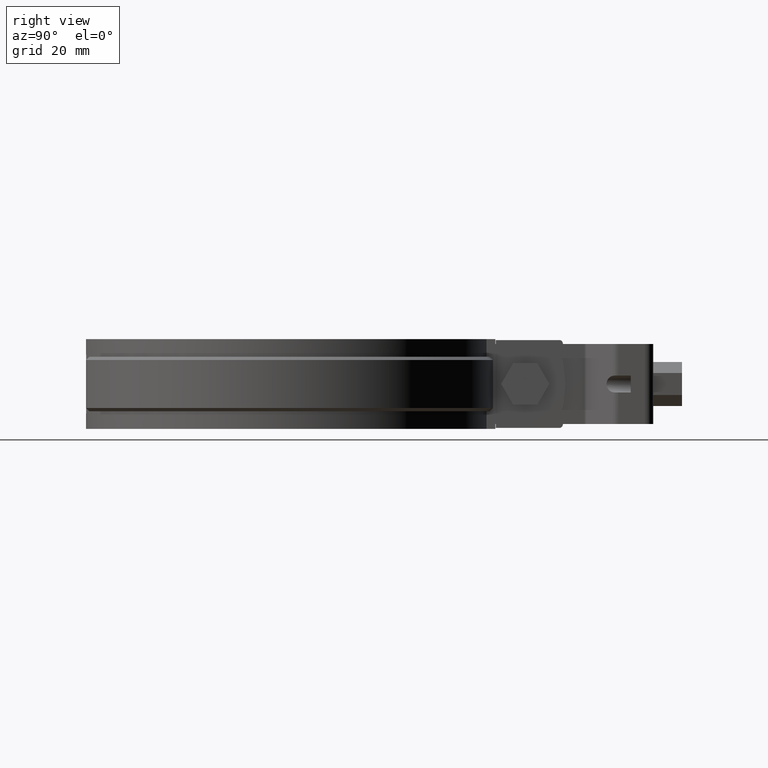
[diagram: clean part render]
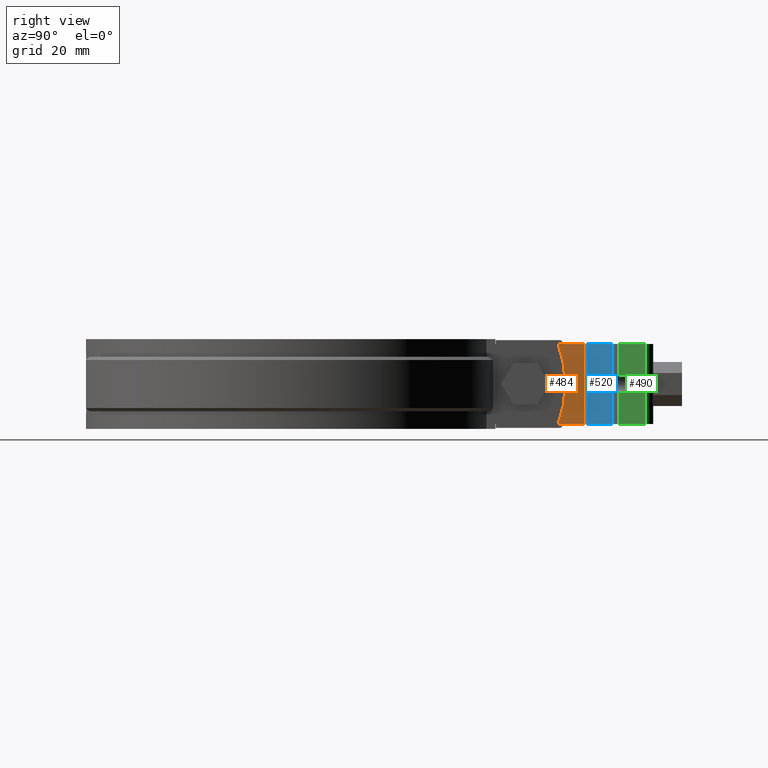
[diagram: same view with three faces highlighted in distinct colors, each labeled with its STEP entity id]
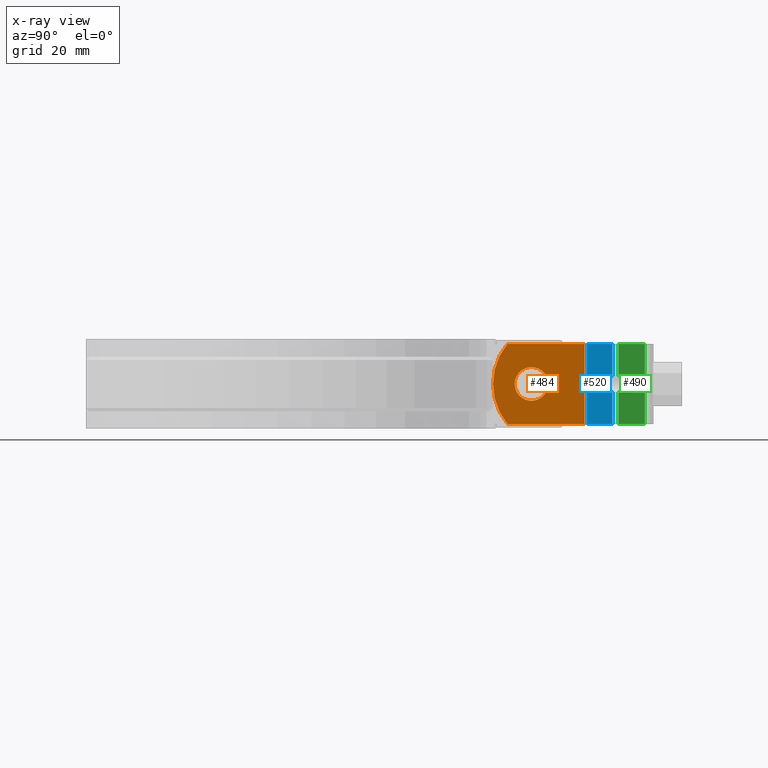
[diagram: x-ray of the same camera — body ghosted, the three highlighted faces saturated]
A machine part, right view with three faces highlighted in distinct colors.
The next image is the same camera in x-ray (body ghosted, the three faces saturated) — at least one of them is partly hidden behind the body in this view.
Their STEP definitions:

[orange] entity #484 — the highlighted planar face has unit normal (1, 0, 0).
#484 = ADVANCED_FACE( '', ( #945, #946 ), #947, .T. );
#945 = FACE_BOUND( '', #2202, .T. );
#946 = FACE_OUTER_BOUND( '', #2203, .T. );
#947 = PLANE( '', #2204 );
#2202 = EDGE_LOOP( '', ( #4280 ) );
#2203 = EDGE_LOOP( '', ( #4281, #4282, #4283, #4284 ) );
#2204 = AXIS2_PLACEMENT_3D( '', #4285, #4286, #4287 );
#4280 = ORIENTED_EDGE( '', *, *, #6344, .F. );
#4281 = ORIENTED_EDGE( '', *, *, #6324, .T. );
#4282 = ORIENTED_EDGE( '', *, *, #6342, .F. );
#4283 = ORIENTED_EDGE( '', *, *, #6345, .F. );
#4284 = ORIENTED_EDGE( '', *, *, #6346, .F. );
#4285 = CARTESIAN_POINT( '', ( 2.99999999998729, 93.3774361374943, -12.5000000008630 ) );
#4286 = DIRECTION( '', ( 1.00000000000000, 2.55616655523167E-013, 1.69074934611736E-013 ) );
#4287 = DIRECTION( '', ( -2.55616655521946E-013, 1.00000000000000, -7.21711579387898E-012 ) );
#6324 = EDGE_CURVE( '', #7458, #7456, #7459, .T. );
#6342 = EDGE_CURVE( '', #7490, #7456, #7493, .T. );
#6344 = EDGE_CURVE( '', #7495, #7495, #7496, .F. );
#6345 = EDGE_CURVE( '', #7497, #7490, #7498, .T. );
#6346 = EDGE_CURVE( '', #7458, #7497, #7499, .F. );
#7456 = VERTEX_POINT( '', #10871 );
#7458 = VERTEX_POINT( '', #10874 );
#7459 = LINE( '', #10875, #10876 );
#7490 = VERTEX_POINT( '', #10916 );
#7493 = CIRCLE( '', #10920, 19.6111110000000 );
#7495 = VERTEX_POINT( '', #10922 );
#7496 = CIRCLE( '', #10923, 5.25000000000002 );
#7497 = VERTEX_POINT( '', #10924 );
#7498 = LINE( '', #10925, #10926 );
#7499 = LINE( '', #10927, #10928 );
#10871 = CARTESIAN_POINT( '', ( 2.99999999998934, 68.9018260022440, 12.5000000052270 ) );
#10874 = CARTESIAN_POINT( '', ( 2.99999999998317, 92.9559723687847, 12.4999999991400 ) );
#10875 = CARTESIAN_POINT( '', ( 2.99999999998306, 93.3774361376747, 12.4999999991370 ) );
#10876 = VECTOR( '', #12765, 1000.00000000000 );
#10916 = CARTESIAN_POINT( '', ( 2.99999999999354, 68.9018259971721, -12.5000000006863 ) );
#10920 = AXIS2_PLACEMENT_3D( '', #12797, #12798, #12799 );
#10922 = CARTESIAN_POINT( '', ( 2.99999999998817, 81.6518259641741, -7.78353104191613E-010 ) );
#10923 = AXIS2_PLACEMENT_3D( '', #12803, #12804, #12805 );
#10924 = CARTESIAN_POINT( '', ( 2.99999999998740, 92.9559723686042, -12.5000000008599 ) );
#10925 = CARTESIAN_POINT( '', ( 2.99999999998729, 93.3774361374943, -12.5000000008630 ) );
#10926 = VECTOR( '', #12806, 1000.00000000000 );
#10927 = CARTESIAN_POINT( '', ( 2.99999999998740, 92.9559723686042, -12.5000000008599 ) );
#10928 = VECTOR( '', #12807, 1000.00000000000 );
#12765 = DIRECTION( '', ( 2.55283588614559E-013, -1.00000000000000, 7.21711579387898E-012 ) );
#12797 = CARTESIAN_POINT( '', ( 2.99999999998756, 84.0129369641741, -7.95377652629270E-010 ) );
#12798 = DIRECTION( '', ( -1.00000000000000, -2.55616655523167E-013, -1.69074934611736E-013 ) );
#12799 = DIRECTION( '', ( -2.55616655521946E-013, 1.00000000000000, -7.21711579387898E-012 ) );
#12803 = CARTESIAN_POINT( '', ( 2.99999999998951, 76.4018259641741, -7.40463246273748E-010 ) );
#12804 = DIRECTION( '', ( -1.00000000000000, -2.55616655523167E-013, -1.69074934611736E-013 ) );
#12805 = DIRECTION( '', ( -2.55616655521946E-013, 1.00000000000000, -7.21711579387898E-012 ) );
#12806 = DIRECTION( '', ( 2.55283588614559E-013, -1.00000000000000, 7.21711579387898E-012 ) );
#12807 = DIRECTION( '', ( -1.69074934613580E-013, 7.21705605698639E-012, 1.00000000000000 ) );

[blue] entity #520 — the highlighted planar face has unit normal (0.6983, -0.7158, 0).
#520 = ADVANCED_FACE( '', ( #1024 ), #1025, .T. );
#1024 = FACE_OUTER_BOUND( '', #2281, .T. );
#1025 = PLANE( '', #2282 );
#2281 = EDGE_LOOP( '', ( #4595, #4596, #4597, #4598, #4599, #4600 ) );
#2282 = AXIS2_PLACEMENT_3D( '', #4601, #4602, #4603 );
#4595 = ORIENTED_EDGE( '', *, *, #6434, .T. );
#4596 = ORIENTED_EDGE( '', *, *, #6440, .F. );
#4597 = ORIENTED_EDGE( '', *, *, #6347, .T. );
#4598 = ORIENTED_EDGE( '', *, *, #6366, .F. );
#4599 = ORIENTED_EDGE( '', *, *, #6326, .F. );
#4600 = ORIENTED_EDGE( '', *, *, #6441, .F. );
#4601 = CARTESIAN_POINT( '', ( 3.90167616445234, 94.2571201598930, 12.4999999991308 ) );
#4602 = DIRECTION( '', ( 0.698323835530682, -0.715781964518328, 5.28390761934007E-012 ) );
#4603 = DIRECTION( '', ( -0.715781964518328, -0.698323835530682, 4.91890702135917E-012 ) );
#6326 = EDGE_CURVE( '', #7460, #7462, #7463, .T. );
#6347 = EDGE_CURVE( '', #7500, #7501, #7502, .T. );
#6366 = EDGE_CURVE( '', #7462, #7501, #7533, .T. );
#6434 = EDGE_CURVE( '', #7640, #7638, #7641, .T. );
#6440 = EDGE_CURVE( '', #7500, #7638, #7648, .T. );
#6441 = EDGE_CURVE( '', #7640, #7460, #7649, .T. );
#7460 = VERTEX_POINT( '', #10877 );
#7462 = VERTEX_POINT( '', #10879 );
#7463 = LINE( '', #10880, #10881 );
#7500 = VERTEX_POINT( '', #10929 );
#7501 = VERTEX_POINT( '', #10930 );
#7502 = ELLIPSE( '', #10931, 3.70224472166266, 2.64999999999997 );
#7533 = LINE( '', #10997, #10998 );
#7638 = VERTEX_POINT( '', #11171 );
#7640 = VERTEX_POINT( '', #11173 );
#7641 = LINE( '', #11174, #11175 );
#7648 = LINE( '', #11185, #11186 );
#7649 = LINE( '', #11187, #11188 );
#10877 = CARTESIAN_POINT( '', ( 3.30167616445248, 93.6717543333033, 12.4999999991349 ) );
#10879 = CARTESIAN_POINT( '', ( 11.4656419723602, 101.636598655633, 12.4999999990788 ) );
#10880 = CARTESIAN_POINT( '', ( 3.90167616445234, 94.2571201598930, 12.4999999991308 ) );
#10881 = VECTOR( '', #12769, 1000.00000000000 );
#10929 = CARTESIAN_POINT( '', ( 11.4656419723628, 101.636598655524, -2.53126104721940 ) );
#10930 = CARTESIAN_POINT( '', ( 11.4656419723619, 101.636598655561, 2.53126104537707 ) );
#10931 = AXIS2_PLACEMENT_3D( '', #12808, #12809, #12810 );
#10997 = CARTESIAN_POINT( '', ( 11.4656419723602, 101.636598655633, 12.4999999990788 ) );
#10998 = VECTOR( '', #12835, 1000.00000000000 );
#11171 = CARTESIAN_POINT( '', ( 11.4656419723645, 101.636598655452, -12.5000000009212 ) );
#11173 = CARTESIAN_POINT( '', ( 3.30167616445671, 93.6717543331228, -12.5000000008651 ) );
#11174 = CARTESIAN_POINT( '', ( 3.90167616445657, 94.2571201597126, -12.5000000008692 ) );
#11175 = VECTOR( '', #12941, 1000.00000000000 );
#11185 = CARTESIAN_POINT( '', ( 11.4656419723602, 101.636598655633, 12.4999999990788 ) );
#11186 = VECTOR( '', #12951, 1000.00000000000 );
#11187 = CARTESIAN_POINT( '', ( 3.30167616445248, 93.6717543333033, 12.4999999991349 ) );
#11188 = VECTOR( '', #12952, 1000.00000000000 );
#12769 = DIRECTION( '', ( 0.715781964518325, 0.698323835530685, -4.91890702135919E-012 ) );
#12808 = CARTESIAN_POINT( '', ( 12.2499999999828, 102.401825964176, -9.26550502988732E-010 ) );
#12809 = DIRECTION( '', ( -0.698323835530680, 0.715781964518330, -5.28394272178785E-012 ) );
#12810 = DIRECTION( '', ( 0.715781964518330, 0.698323835530680, -4.91887104134853E-012 ) );
#12835 = DIRECTION( '', ( 1.69013704295889E-013, -7.21711579387894E-012, -1.00000000000000 ) );
#12941 = DIRECTION( '', ( 0.715781964518325, 0.698323835530685, -4.91890702135919E-012 ) );
#12951 = DIRECTION( '', ( 1.69013704295889E-013, -7.21711579387894E-012, -1.00000000000000 ) );
#12952 = DIRECTION( '', ( -1.69074934613580E-013, 7.21705605698639E-012, 1.00000000000000 ) );

[green] entity #490 — the highlighted planar face has unit normal (1, 0, 0).
#490 = ADVANCED_FACE( '', ( #958 ), #959, .T. );
#958 = FACE_OUTER_BOUND( '', #2215, .T. );
#959 = PLANE( '', #2216 );
#2215 = EDGE_LOOP( '', ( #4329, #4330, #4331, #4332, #4333, #4334, #4335, #4336 ) );
#2216 = AXIS2_PLACEMENT_3D( '', #4337, #4338, #4339 );
#4329 = ORIENTED_EDGE( '', *, *, #6367, .T. );
#4330 = ORIENTED_EDGE( '', *, *, #6368, .T. );
#4331 = ORIENTED_EDGE( '', *, *, #6369, .F. );
#4332 = ORIENTED_EDGE( '', *, *, #6328, .F. );
#4333 = ORIENTED_EDGE( '', *, *, #6365, .T. );
#4334 = ORIENTED_EDGE( '', *, *, #6353, .T. );
#4335 = ORIENTED_EDGE( '', *, *, #6363, .F. );
#4336 = ORIENTED_EDGE( '', *, *, #6349, .F. );
#4337 = CARTESIAN_POINT( '', ( 12.2499999999805, 103.497631763381, 12.4999999990655 ) );
#4338 = DIRECTION( '', ( 1.00000000000000, 2.55394610918241E-013, 1.69013704294046E-013 ) );
#4339 = DIRECTION( '', ( 2.55394610917021E-013, -1.00000000000000, 7.21711579387898E-012 ) );
#6328 = EDGE_CURVE( '', #7464, #7466, #7467, .T. );
#6349 = EDGE_CURVE( '', #7503, #7505, #7506, .T. );
#6353 = EDGE_CURVE( '', #7513, #7511, #7514, .T. );
#6363 = EDGE_CURVE( '', #7505, #7511, #7530, .T. );
#6365 = EDGE_CURVE( '', #7464, #7513, #7532, .T. );
#6367 = EDGE_CURVE( '', #7503, #7534, #7535, .T. );
#6368 = EDGE_CURVE( '', #7534, #7536, #7537, .T. );
#6369 = EDGE_CURVE( '', #7466, #7536, #7538, .T. );
#7464 = VERTEX_POINT( '', #10882 );
#7466 = VERTEX_POINT( '', #10884 );
#7467 = LINE( '', #10885, #10886 );
#7503 = VERTEX_POINT( '', #10932 );
#7505 = VERTEX_POINT( '', #10943 );
#7506 = LINE( '', #10944, #10945 );
#7511 = VERTEX_POINT( '', #10950 );
#7513 = VERTEX_POINT( '', #10952 );
#7514 = LINE( '', #10953, #10954 );
#7530 = LINE( '', #10991, #10992 );
#7532 = LINE( '', #10995, #10996 );
#7534 = VERTEX_POINT( '', #10999 );
#7535 = LINE( '', #11000, #11001 );
#7536 = VERTEX_POINT( '', #11002 );
#7537 = LINE( '', #11003, #11004 );
#7538 = LINE( '', #11005, #11006 );
#10882 = CARTESIAN_POINT( '', ( 12.2499999999805, 103.497631763381, 12.4999999990655 ) );
#10884 = CARTESIAN_POINT( '', ( 12.2499999999783, 111.801825964267, 12.4999999990056 ) );
#10885 = CARTESIAN_POINT( '', ( 12.2499999999805, 103.497631763381, 12.4999999990655 ) );
#10886 = VECTOR( '', #12773, 1000.00000000000 );
#10932 = CARTESIAN_POINT( '', ( 12.2499999999830, 103.497631763272, -2.65000000093443 ) );
#10943 = CARTESIAN_POINT( '', ( 12.2499999999820, 107.401825964157, -2.65000000096260 ) );
#10944 = CARTESIAN_POINT( '', ( 12.2499999999846, 97.4018259641571, -2.65000000089044 ) );
#10945 = VECTOR( '', #12811, 1000.00000000000 );
#10950 = CARTESIAN_POINT( '', ( 12.2499999999811, 107.401825964195, 2.64999999903734 ) );
#10952 = CARTESIAN_POINT( '', ( 12.2499999999821, 103.497631763310, 2.64999999906551 ) );
#10953 = CARTESIAN_POINT( '', ( 12.2499999999837, 97.4018259641954, 2.64999999910950 ) );
#10954 = VECTOR( '', #12821, 1000.00000000000 );
#10991 = CARTESIAN_POINT( '', ( 12.2499999999823, 107.401825964146, -4.25000000096260 ) );
#10992 = VECTOR( '', #12832, 1000.00000000000 );
#10995 = CARTESIAN_POINT( '', ( 12.2499999999805, 103.497631763381, 12.4999999990655 ) );
#10996 = VECTOR( '', #12834, 1000.00000000000 );
#10999 = CARTESIAN_POINT( '', ( 12.2499999999847, 103.497631763200, -12.5000000009345 ) );
#11000 = CARTESIAN_POINT( '', ( 12.2499999999805, 103.497631763381, 12.4999999990655 ) );
#11001 = VECTOR( '', #12836, 1000.00000000000 );
#11002 = CARTESIAN_POINT( '', ( 12.2499999999826, 111.801825964086, -12.5000000009944 ) );
#11003 = CARTESIAN_POINT( '', ( 12.2499999999847, 103.497631763200, -12.5000000009345 ) );
#11004 = VECTOR( '', #12837, 1000.00000000000 );
#11005 = CARTESIAN_POINT( '', ( 12.2499999999783, 111.801825964267, 12.4999999990056 ) );
#11006 = VECTOR( '', #12838, 1000.00000000000 );
#12773 = DIRECTION( '', ( -2.55394610917021E-013, 1.00000000000000, -7.21711579387898E-012 ) );
#12811 = DIRECTION( '', ( -2.55394610917021E-013, 1.00000000000000, -7.21711579387898E-012 ) );
#12821 = DIRECTION( '', ( -2.55394610917021E-013, 1.00000000000000, -7.21711579387898E-012 ) );
#12832 = DIRECTION( '', ( -1.69011853759909E-013, 7.21711579387894E-012, 1.00000000000000 ) );
#12834 = DIRECTION( '', ( 1.69013704295889E-013, -7.21711579387894E-012, -1.00000000000000 ) );
#12836 = DIRECTION( '', ( 1.69013704295889E-013, -7.21711579387894E-012, -1.00000000000000 ) );
#12837 = DIRECTION( '', ( -2.55394610917021E-013, 1.00000000000000, -7.21711579387898E-012 ) );
#12838 = DIRECTION( '', ( 1.69013704295889E-013, -7.21711579387894E-012, -1.00000000000000 ) );